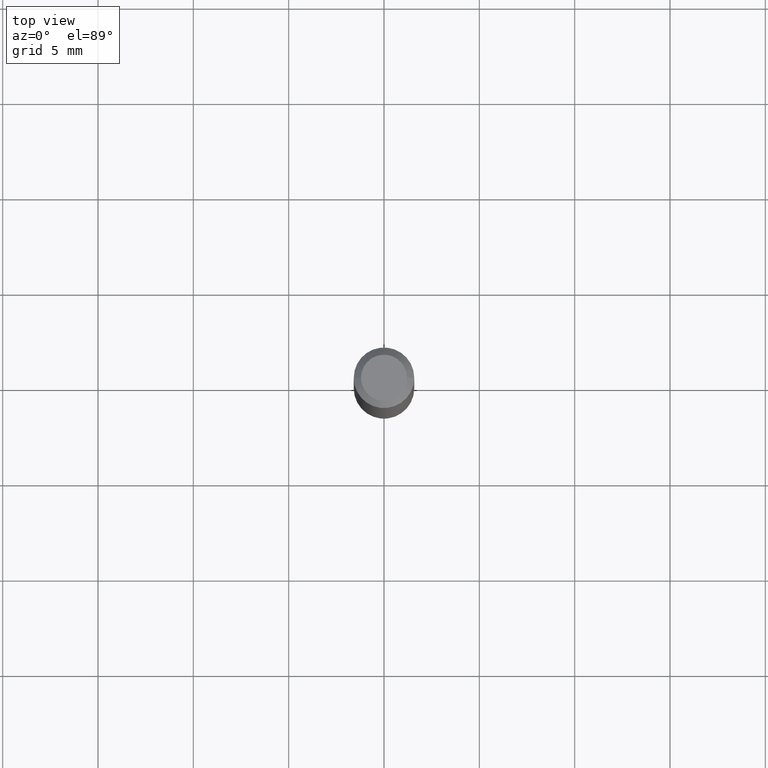
[diagram: clean part render]
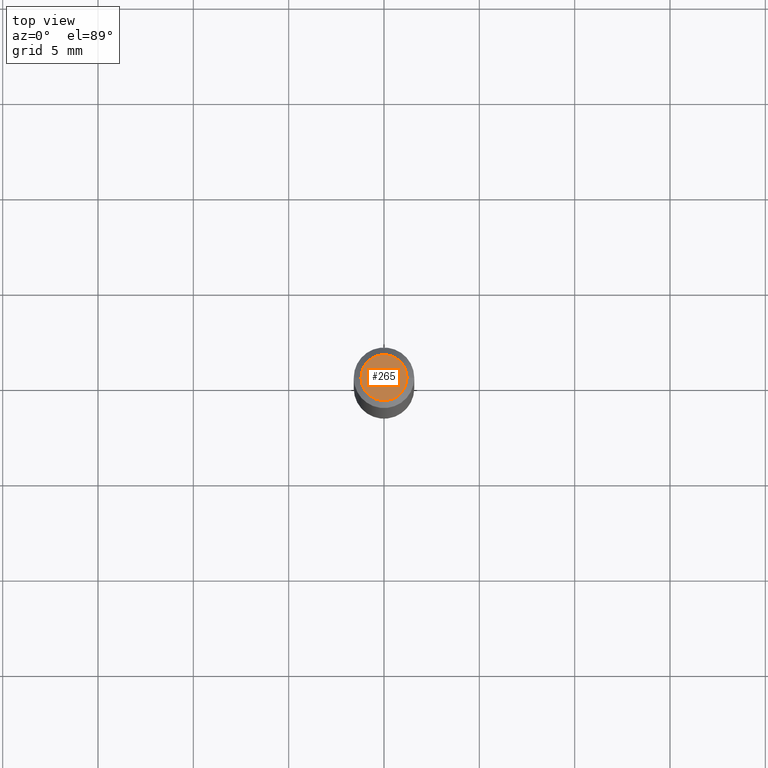
[diagram: same view with one face highlighted and labeled with its STEP entity id]
A machine part, top view. The second image highlights one B-rep face of the part: STEP entity #265.
In plain terms, the highlighted planar face has unit normal (0, -0, -1).
Its self-contained STEP definition (entity closure, byte-faithful):
#20 = CARTESIAN_POINT ( 'NONE',  ( 3.316907271900976096E-16, 0.04749999999999999362, -9.994755555137580731E-17 ) ) ;
#63 = AXIS2_PLACEMENT_3D ( 'NONE', #20, #315, #172 ) ;
#160 = EDGE_LOOP ( 'NONE', ( #253, #402 ) ) ;
#171 = CIRCLE ( 'NONE', #301, 0.04749999999999999362 ) ;
#172 = DIRECTION ( 'NONE',  ( -1.000000000000000000, 6.982962677686265922E-15, -4.876176775795935793E-29 ) ) ;
#175 = EDGE_CURVE ( 'NONE', #292, #251, #190, .T. ) ;
#177 = DIRECTION ( 'NONE',  ( 1.000000000000000000, -6.982962677686267499E-15, 4.884662768193073002E-29 ) ) ;
#190 = CIRCLE ( 'NONE', #463, 0.04749999999999999362 ) ;
#209 = DIRECTION ( 'NONE',  ( -2.445468806185136597E-29, 3.491481338843145583E-15, 1.000000000000000000 ) ) ;
#240 = CARTESIAN_POINT ( 'NONE',  ( 0.04749999999999999362, -4.035134999187576158E-16, 1.317956160873497667E-16 ) ) ;
#243 = CARTESIAN_POINT ( 'NONE',  ( -0.04749999999999999362, 3.578768372314212971E-16, 1.317956160873447624E-16 ) ) ;
#248 = DIRECTION ( 'NONE',  ( -2.445468806185136597E-29, 3.491481338843145583E-15, 1.000000000000000000 ) ) ;
#251 = VERTEX_POINT ( 'NONE', #240 ) ;
#253 = ORIENTED_EDGE ( 'NONE', *, *, #175, .T. ) ;
#265 = ADVANCED_FACE ( 'NONE', ( #342 ), #387, .F. ) ;
#284 = EDGE_CURVE ( 'NONE', #251, #292, #171, .T. ) ;
#292 = VERTEX_POINT ( 'NONE', #243 ) ;
#301 = AXIS2_PLACEMENT_3D ( 'NONE', #317, #248, #359 ) ;
#315 = DIRECTION ( 'NONE',  ( 2.438088387897960049E-29, -3.491481338843145188E-15, -1.000000000000000000 ) ) ;
#317 = CARTESIAN_POINT ( 'NONE',  ( -3.223020679335594837E-45, 4.601619341103081537E-31, 1.317956160873471783E-16 ) ) ;
#342 = FACE_OUTER_BOUND ( 'NONE', #160, .T. ) ;
#359 = DIRECTION ( 'NONE',  ( 1.000000000000000000, -6.982962677686267499E-15, 4.884662768193073002E-29 ) ) ;
#362 = CARTESIAN_POINT ( 'NONE',  ( -3.223020679335594837E-45, 4.601619341103081537E-31, 1.317956160873471783E-16 ) ) ;
#387 = PLANE ( 'NONE',  #63 ) ;
#402 = ORIENTED_EDGE ( 'NONE', *, *, #284, .T. ) ;
#463 = AXIS2_PLACEMENT_3D ( 'NONE', #362, #209, #177 ) ;